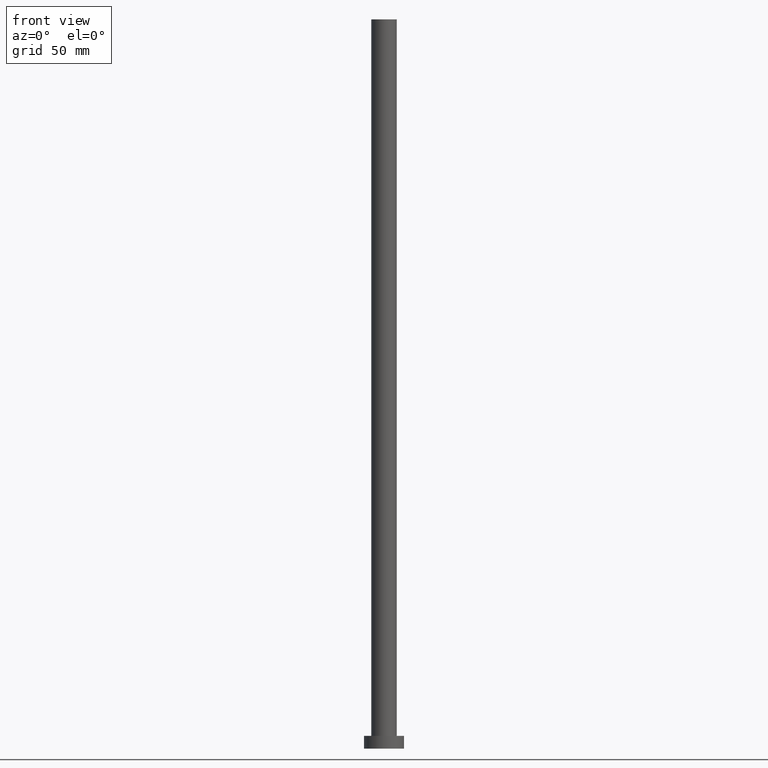
[diagram: clean part render]
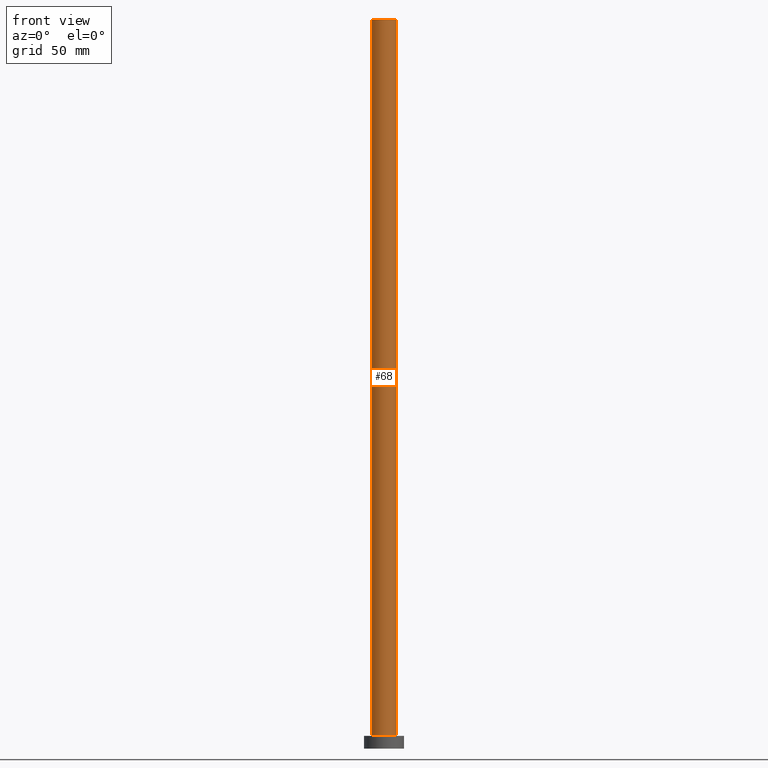
[diagram: same view with one face highlighted and labeled with its STEP entity id]
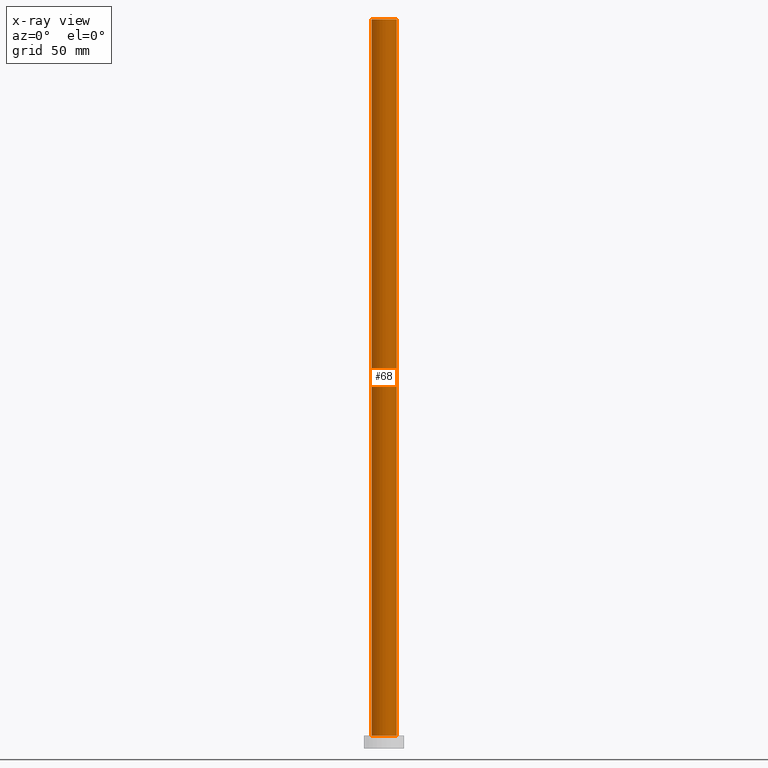
[diagram: x-ray of the same camera — body ghosted, the highlighted face saturated]
A machine part, front view. The second image highlights one B-rep face of the part: STEP entity #68.
The next image is the same camera in x-ray: the body ghosted, the highlighted face saturated — about 0% of this face is hidden behind the body in this view.
In plain terms, the highlighted cylindrical surface (edge-blend (fillet) strip) has radius 7 mm, axis along (-0, -0, -1).
Its self-contained STEP definition (entity closure, byte-faithful):
#2 = LINE ( 'NONE', #38, #207 ) ;
#3 = EDGE_CURVE ( 'NONE', #21, #40, #2, .T. ) ;
#5 = CARTESIAN_POINT ( 'NONE',  ( 7.000000000000000888, 8.572527594031474176E-16, 400.0000000000000000 ) ) ;
#7 = FACE_OUTER_BOUND ( 'NONE', #36, .T. ) ;
#12 = ORIENTED_EDGE ( 'NONE', *, *, #3, .F. ) ;
#21 = VERTEX_POINT ( 'NONE', #5 ) ;
#25 = DIRECTION ( 'NONE',  ( 0.000000000000000000, 0.000000000000000000, 1.000000000000000000 ) ) ;
#36 = EDGE_LOOP ( 'NONE', ( #12, #39, #179, #198 ) ) ;
#38 = CARTESIAN_POINT ( 'NONE',  ( 7.000000000000000888, 8.572527594031474176E-16, 400.0000000000000000 ) ) ;
#39 = ORIENTED_EDGE ( 'NONE', *, *, #171, .F. ) ;
#40 = VERTEX_POINT ( 'NONE', #62 ) ;
#41 = AXIS2_PLACEMENT_3D ( 'NONE', #226, #188, #212 ) ;
#44 = CARTESIAN_POINT ( 'NONE',  ( -7.000000000000000888, 0.000000000000000000, 400.0000000000000000 ) ) ;
#62 = CARTESIAN_POINT ( 'NONE',  ( 7.000000000000000888, 8.572527594031474176E-16, 7.000000000000000000 ) ) ;
#65 = DIRECTION ( 'NONE',  ( 1.000000000000000000, 0.000000000000000000, 0.000000000000000000 ) ) ;
#67 = CARTESIAN_POINT ( 'NONE',  ( 0.000000000000000000, 0.000000000000000000, 400.0000000000000000 ) ) ;
#68 = ADVANCED_FACE ( 'NONE', ( #7 ), #91, .T. ) ;
#86 = CARTESIAN_POINT ( 'NONE',  ( -7.000000000000000888, 0.000000000000000000, 400.0000000000000000 ) ) ;
#89 = DIRECTION ( 'NONE',  ( -1.000000000000000000, 0.000000000000000000, 0.000000000000000000 ) ) ;
#91 = CYLINDRICAL_SURFACE ( 'NONE', #196, 7.000000000000000888 ) ;
#104 = VERTEX_POINT ( 'NONE', #86 ) ;
#108 = CIRCLE ( 'NONE', #143, 7.000000000000000888 ) ;
#113 = EDGE_CURVE ( 'NONE', #197, #40, #108, .T. ) ;
#122 = DIRECTION ( 'NONE',  ( -0.000000000000000000, -0.000000000000000000, -1.000000000000000000 ) ) ;
#124 = CIRCLE ( 'NONE', #41, 7.000000000000000888 ) ;
#130 = DIRECTION ( 'NONE',  ( -0.000000000000000000, -0.000000000000000000, -1.000000000000000000 ) ) ;
#143 = AXIS2_PLACEMENT_3D ( 'NONE', #210, #25, #65 ) ;
#170 = CARTESIAN_POINT ( 'NONE',  ( -7.000000000000000888, 0.000000000000000000, 7.000000000000000000 ) ) ;
#171 = EDGE_CURVE ( 'NONE', #104, #21, #124, .T. ) ;
#177 = LINE ( 'NONE', #44, #190 ) ;
#179 = ORIENTED_EDGE ( 'NONE', *, *, #246, .T. ) ;
#188 = DIRECTION ( 'NONE',  ( 0.000000000000000000, 0.000000000000000000, 1.000000000000000000 ) ) ;
#190 = VECTOR ( 'NONE', #255, 1000.000000000000000 ) ;
#196 = AXIS2_PLACEMENT_3D ( 'NONE', #67, #130, #89 ) ;
#197 = VERTEX_POINT ( 'NONE', #170 ) ;
#198 = ORIENTED_EDGE ( 'NONE', *, *, #113, .T. ) ;
#207 = VECTOR ( 'NONE', #122, 1000.000000000000000 ) ;
#210 = CARTESIAN_POINT ( 'NONE',  ( 0.000000000000000000, 0.000000000000000000, 7.000000000000000000 ) ) ;
#212 = DIRECTION ( 'NONE',  ( 1.000000000000000000, 0.000000000000000000, 0.000000000000000000 ) ) ;
#226 = CARTESIAN_POINT ( 'NONE',  ( 0.000000000000000000, 0.000000000000000000, 400.0000000000000000 ) ) ;
#246 = EDGE_CURVE ( 'NONE', #104, #197, #177, .T. ) ;
#255 = DIRECTION ( 'NONE',  ( -0.000000000000000000, -0.000000000000000000, -1.000000000000000000 ) ) ;